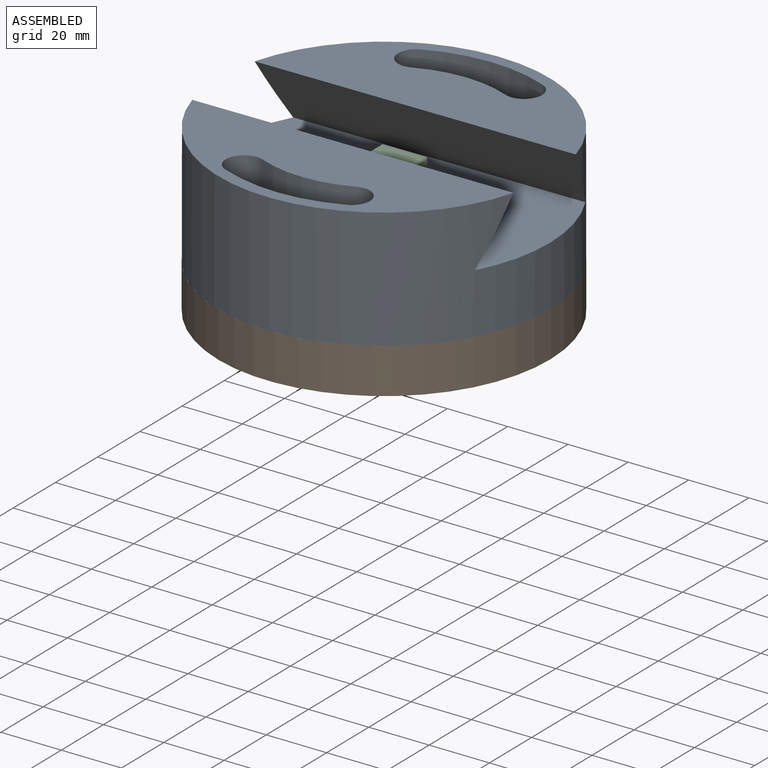
[diagram: assembled view]
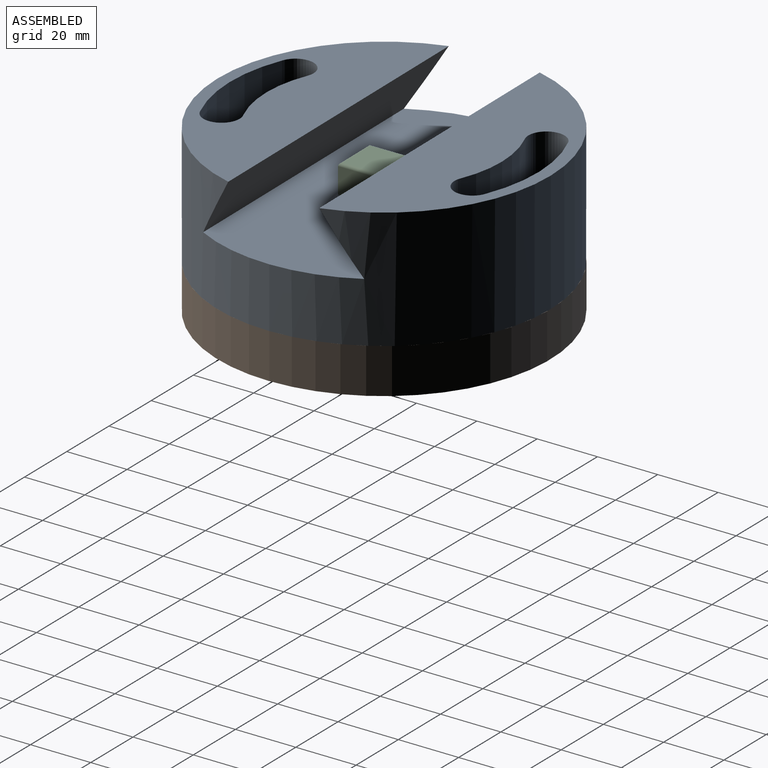
[diagram: assembled view, second angle]
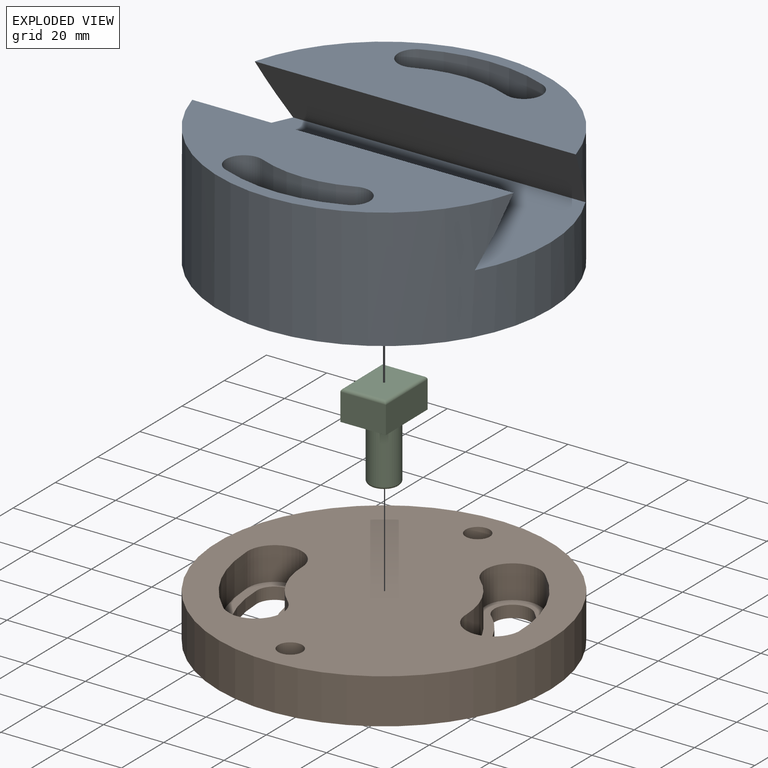
[diagram: exploded view]
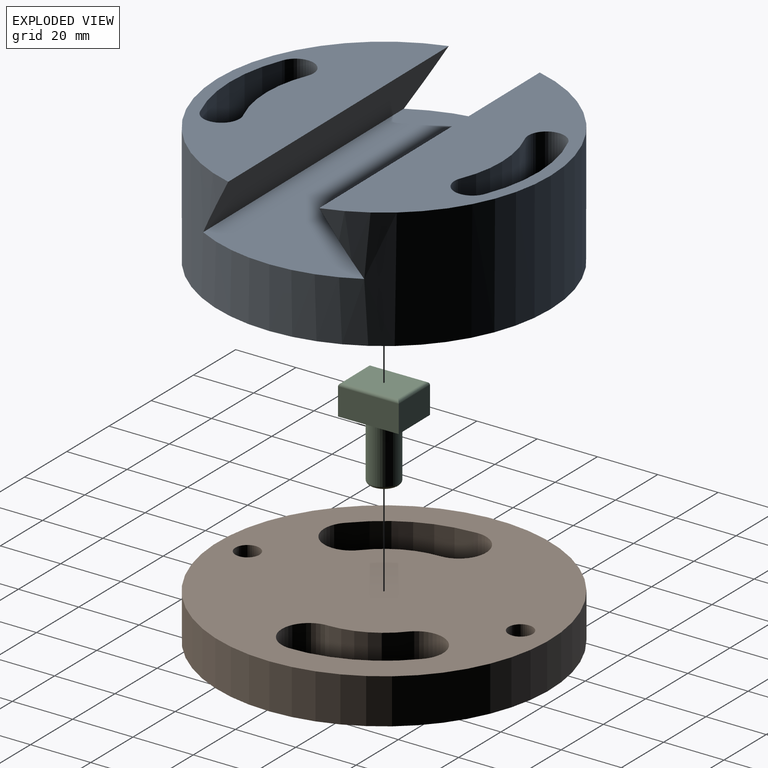
[diagram: exploded view, second angle]
ASSEMBLY  parts=3 mates=2
PART A: 26 faces, bbox 110.5x110.5x40.5 mm
  f0: plane 110x110mm, normal (0,0,-1), area 8695.1mm2, adj f1,f17,f18,f19,f20,f21,f22,f23
  f1: cylinder r=55mm len=110mm, axis (0,0,1), area 12107.5mm2, adj f0,f2,f3,f4,f5,f6
  f2: plane 105.84x40.01mm, normal (0,0,1), area 2537.4mm2, adj f1,f5,f12,f13,f14,f15
  f3: plane 105.84x40.01mm, normal (0,0,1), area 2572.9mm2, adj f1,f6,f7,f8,f9,f10
  f4: plane 110x53.09mm, normal (0,0,1), area 5525.8mm2, adj f1,f5,f6,f25
  f5: plane 106.3x20.47mm, normal (0.87,0,-0.5), area 2346.2mm2, adj f1,f2,f4
  f6: plane 106.3x20.47mm, normal (-0.87,0,-0.5), area 2346.2mm2, adj f1,f3,f4
  f7: cylinder r=6mm len=15mm, axis (0,0,1), area 296.1mm2, adj f3,f8,f10,f11
  f8: cylinder r=39.01mm len=30.76mm, axis (0,0,1), area 474.2mm2, adj f3,f7,f9,f11
  f9: cylinder r=6mm len=15mm, axis (0,0,1), area 285.4mm2, adj f3,f8,f10,f11
  f10: cylinder r=50.98mm len=39.21mm, axis (0,0,1), area 603.7mm2, adj f3,f7,f9,f11
  f11: plane 47.48x15.62mm, normal (0,0,1), area 185.3mm2, adj f7,f8,f9,f10,f21,f22,f23,f24
  f12: cylinder r=6mm len=15mm, axis (0,0,1), area 286.8mm2, adj f2,f13,f15,f16
  f13: cylinder r=50.99mm len=40.2mm, axis (0,0,1), area 619.8mm2, adj f2,f12,f14,f16
  f14: cylinder r=6mm len=15mm, axis (0,0,1), area 278.6mm2, adj f2,f13,f15,f16
  f15: cylinder r=39mm len=30.75mm, axis (0,0,1), area 474.1mm2, adj f2,f12,f14,f16
  f16: plane 47.48x15.63mm, normal (0,0,1), area 184.7mm2, adj f12,f13,f14,f15,f17,f18,f19,f20
  f17: cylinder r=49.23mm len=38.13mm, axis (0,0,1), area 978.8mm2, adj f0,f16,f18,f20
  f18: cylinder r=4.25mm len=25mm, axis (0,0,1), area 352.8mm2, adj f0,f16,f17,f19
  f19: cylinder r=40.77mm len=31.43mm, axis (0,0,1), area 806.8mm2, adj f0,f16,f18,f20
  f20: cylinder r=4.25mm len=25mm, axis (0,0,1), area 352.8mm2, adj f0,f16,f17,f19
  f21: cylinder r=4.25mm len=25mm, axis (0,0,1), area 357.6mm2, adj f0,f11,f22,f24
  f22: cylinder r=49.19mm len=37.41mm, axis (0,0,1), area 959.4mm2, adj f0,f11,f21,f23
  f23: cylinder r=4.25mm len=25mm, axis (0,0,1), area 357.6mm2, adj f0,f11,f22,f24
  f24: cylinder r=40.76mm len=31.76mm, axis (0,0,1), area 815.6mm2, adj f0,f11,f21,f23
  f25: cylinder r=5mm len=20mm, axis (0,0,1), area 628.3mm2, adj f0,f4
PART B: 23 faces, bbox 110x110x15 mm
  f0: plane 110x110mm, normal (0,0,-1), area 8448mm2, adj f1,f13,f14,f15,f16,f17,f18,f19
  f1: cylinder r=55mm len=110mm, axis (0,0,1), area 5183.6mm2, adj f0,f2
  f2: plane 110x110mm, normal (0,0,1), area 7800mm2, adj f1,f3,f4,f5,f6,f8,f9,f10
  f3: cylinder r=9mm len=15.85mm, axis (0,0,1), area 326.4mm2, adj f2,f4,f6,f7
  f4: cylinder r=27mm len=20.31mm, axis (0,0,1), area 252.3mm2, adj f2,f3,f5,f7
  f5: cylinder r=9mm len=18mm, axis (0,0,1), area 324.2mm2, adj f2,f4,f6,f7
  f6: cylinder r=44.92mm len=31.57mm, axis (0,0,1), area 391.3mm2, adj f2,f3,f5,f7
  f7: plane 45.04x30.23mm, normal (0,0,1), area 322.1mm2, adj f3,f4,f5,f6,f17,f18,f19,f20
  f8: cylinder r=9mm len=15.58mm, axis (0,0,1), area 315.5mm2, adj f2,f9,f11,f12
  f9: cylinder r=27.01mm len=20.06mm, axis (0,0,1), area 251.1mm2, adj f2,f8,f10,f12
  f10: cylinder r=9mm len=17.96mm, axis (0,0,1), area 306.5mm2, adj f2,f9,f11,f12
  f11: cylinder r=44.97mm len=33.91mm, axis (0,0,1), area 418mm2, adj f2,f8,f10,f12
  f12: plane 44.93x30.07mm, normal (0,0,1), area 325.9mm2, adj f8,f9,f10,f11,f13,f14,f15,f16
  f13: cylinder r=30.03mm len=21.59mm, axis (0,0,1), area 97.3mm2, adj f0,f12,f14,f16
  f14: cylinder r=6mm len=12mm, axis (0,0,1), area 81.8mm2, adj f0,f12,f13,f15
  f15: cylinder r=41.92mm len=29.56mm, axis (0,0,1), area 133.1mm2, adj f0,f12,f14,f16
  f16: cylinder r=6mm len=10.82mm, axis (0,0,1), area 81.8mm2, adj f0,f12,f13,f15
  f17: cylinder r=30mm len=22.36mm, axis (0,0,1), area 101.1mm2, adj f0,f7,f18,f20
  f18: cylinder r=6mm len=12mm, axis (0,0,1), area 75.8mm2, adj f0,f7,f17,f19
  f19: cylinder r=42mm len=31.54mm, axis (0,0,1), area 142.7mm2, adj f0,f7,f18,f20
  f20: cylinder r=6mm len=10.57mm, axis (0,0,1), area 75.8mm2, adj f0,f7,f17,f19
  f21: cylinder r=4mm len=15mm, axis (0,0,1), area 377mm2, adj f0,f2
  f22: cylinder r=4mm len=15mm, axis (0,0,1), area 377mm2, adj f0,f2
PART C: 13 faces, bbox 20x15x30 mm
  f0: cylinder r=5mm len=19mm, axis (0,0,1), area 596.9mm2, adj f7,f12
  f1: plane 8x8mm, normal (0,0,-1), area 50.3mm2, adj f12
  f2: plane 15x9mm, normal (1,0,0), area 135mm2, adj f3,f5,f7,f8
  f3: plane 20x9mm, normal (0,1,0), area 180mm2, adj f2,f4,f7,f9
  f4: plane 15x9mm, normal (-1,0,0), area 135mm2, adj f3,f5,f7,f11
  f5: plane 20x9mm, normal (0,-1,0), area 180mm2, adj f2,f4,f7,f10
  f6: plane 18x13mm, normal (0,0,1), area 234mm2, adj f8,f9,f10,f11
  f7: plane 20x15mm, normal (0,0,-1), area 221.5mm2, adj f0,f2,f3,f4,f5
  f8: cylinder r=1mm len=15mm, axis (0,-1,0), area 22.4mm2, adj f2,f6,f9,f10
  f9: cylinder r=1mm len=20mm, axis (1,0,0), area 30.3mm2, adj f3,f6,f8,f11
  f10: cylinder r=1mm len=20mm, axis (-1,0,0), area 30.3mm2, adj f5,f6,f8,f11
  f11: cylinder r=1mm len=15mm, axis (0,1,0), area 22.4mm2, adj f4,f6,f9,f10
  f12: torus R=4mm, axis (0,0,1), area 45.8mm2, adj f0,f1
PLACE A rot(axis=(0,0,-1),89.5deg) t=(-25.4,-16.53,78.34)mm
PLACE B rot(axis=(0,0,1),0.5deg) t=(-25.4,-16.53,38.34)mm
PLACE C rot(axis=(0,0,-1),89.5deg) t=(-25.4,-16.53,57.84)mm
MATE revolute A.f1 <-> B.f1  axis (0,0,-1) through (-25.4,-16.53,38.34)mm
MATE slider C.f0 <-> A.f25  axis (0,0,1) through (-25.4,-16.53,48.34)mm
